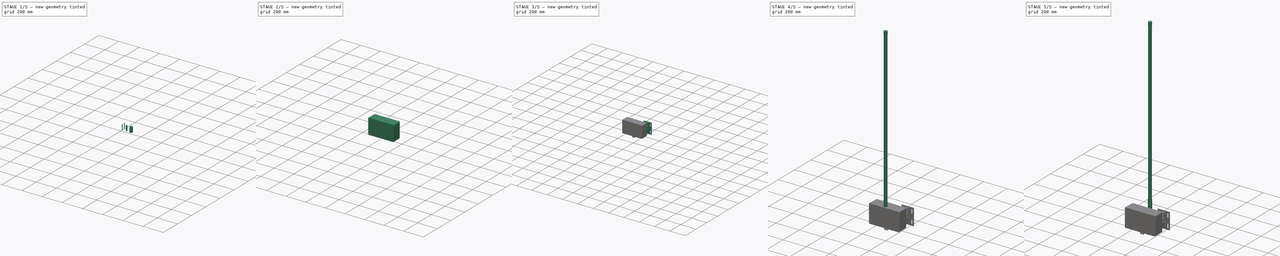
[diagram: build sequence overview — one tinted view per stage of 5, left to right]
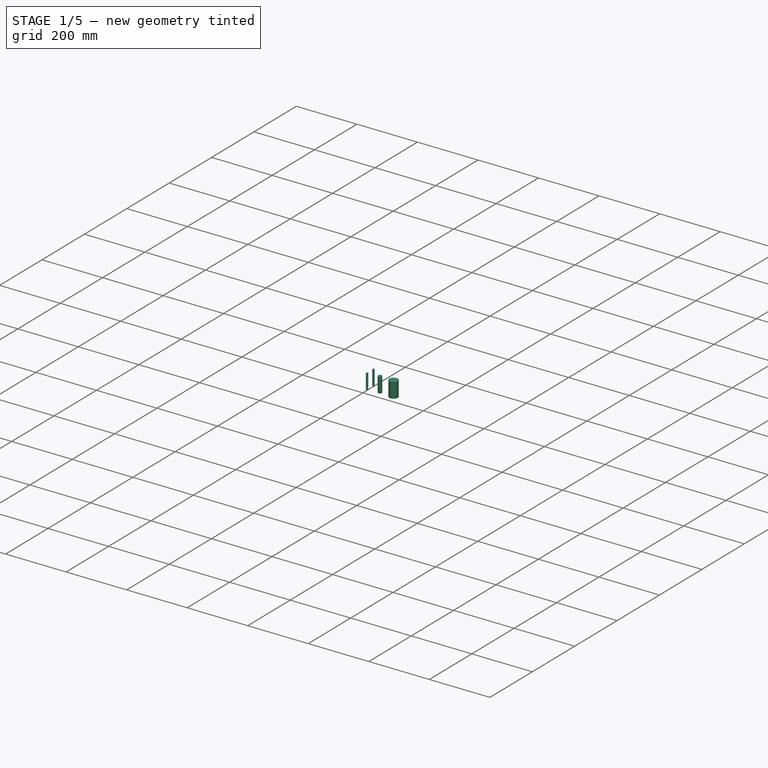
[diagram: stage 1 of 5 — iso view after this stage's code; geometry added in this stage tinted green]
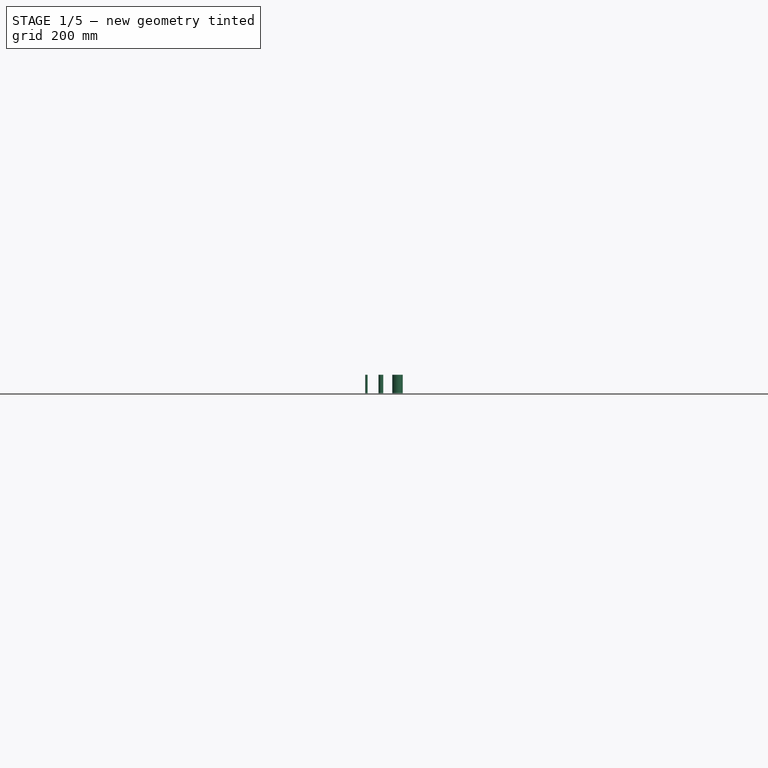
[diagram: stage 1 of 5 — front view after this stage's code; geometry added in this stage tinted green]
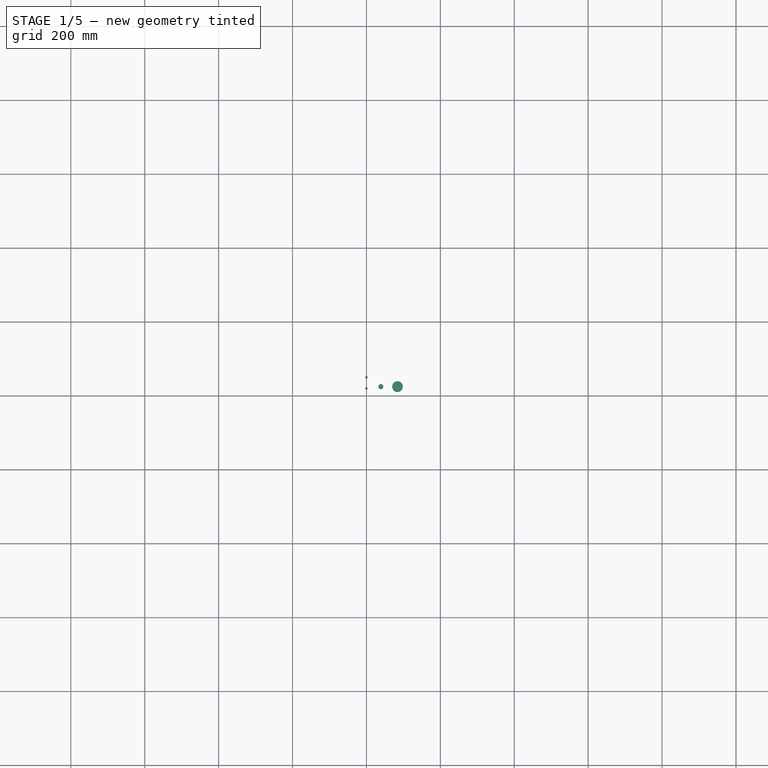
[diagram: stage 1 of 5 — top view after this stage's code; geometry added in this stage tinted green]
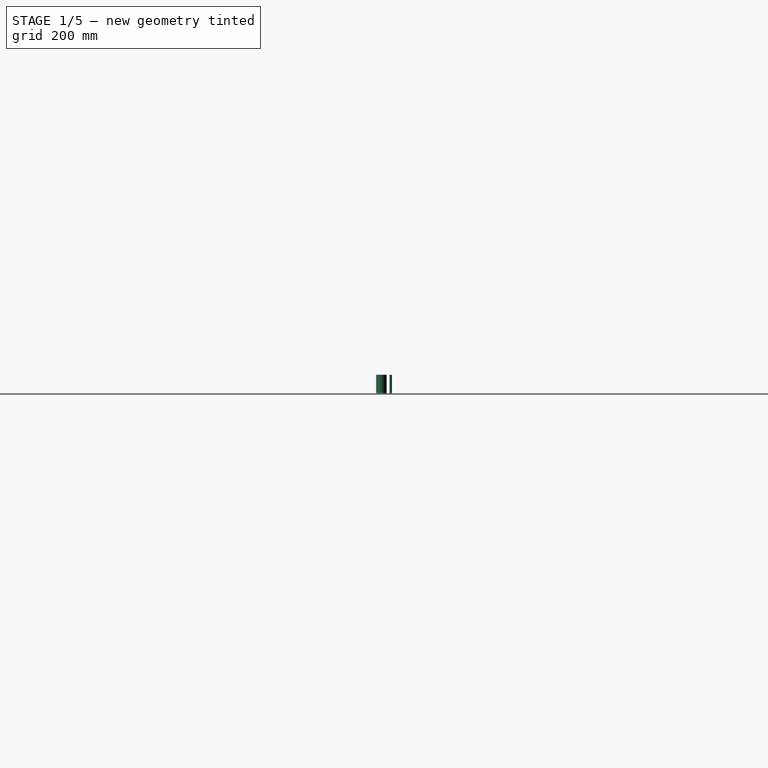
[diagram: stage 1 of 5 — right view after this stage's code; geometry added in this stage tinted green]
FCSTD DOCUMENT  (FreeCAD 0.20R29410 (Git))
Label: gateWayModuleTestPrint
License: All rights reserved
LicenseURL: http://en.wikipedia.org/wiki/All_rights_reserved
objects: Part::Feature×21, Part::Cylinder×10, Part::MultiFuse×6, App::Part×2, Part::Box×1, Sketcher::SketchObject×1, Part::Extrusion×1, Part::Cut×1
note: 41 computed .brp shape members not serialized (recipe doc carries the construction recipe); baked Part::Feature solids carry a one-line shape summary decoded from their .brp

FEATURE [Part::Cylinder] Cylinder035  label="pg7Cut"
  Angle = 360
  AttacherType = Attacher::AttachEngine3D
  FirstAngle = 0
  Height = 50
  Placement = pos=(39,25,-147) rot=(0,0,1;0rad)
  Radius = 6.4
  SecondAngle = 0
FEATURE [Part::Cylinder] Cylinder036  label="AnetnnaCut"
  Angle = 360
  AttacherType = Attacher::AttachEngine3D
  FirstAngle = 0
  Height = 50
  Placement = pos=(84,25,-147) rot=(0,0,1;0rad)
  Radius = 14.2
  SecondAngle = 0
FEATURE [Part::Feature] Part__Feature030  label="47065T139_T-Slotted Framing"
  Placement = pos=(0,20,-405) rot=(-0.57735,-0.57735,0.57735;2.0944rad)
  shape: bbox 11.25 x 25.4 x 17.44 mm, 56 faces, 2 solids (baked)
FEATURE [Part::Feature] Part__Feature031  label="47065T139_T-Slotted Framing001"
  Placement = pos=(0,50,-405) rot=(0.57735,0.57735,-0.57735;4.18879rad)
  shape: bbox 11.25 x 25.4 x 17.44 mm, 56 faces, 2 solids (baked)
FEATURE [Part::Cylinder] Cylinder037  label="m5Cut"
  Angle = 360
  AttacherType = Attacher::AttachEngine3D
  FirstAngle = 0
  Height = 50
  Placement = pos=(0,20,-147) rot=(0,0,1;0rad)
  Radius = 3.2
  SecondAngle = 0
FEATURE [Part::Cylinder] Cylinder038  label="m5Cut001"
  Angle = 360
  AttacherType = Attacher::AttachEngine3D
  FirstAngle = 0
  Height = 50
  Placement = pos=(0,50,-147) rot=(0,0,1;0rad)
  Radius = 3.2
  SecondAngle = 0
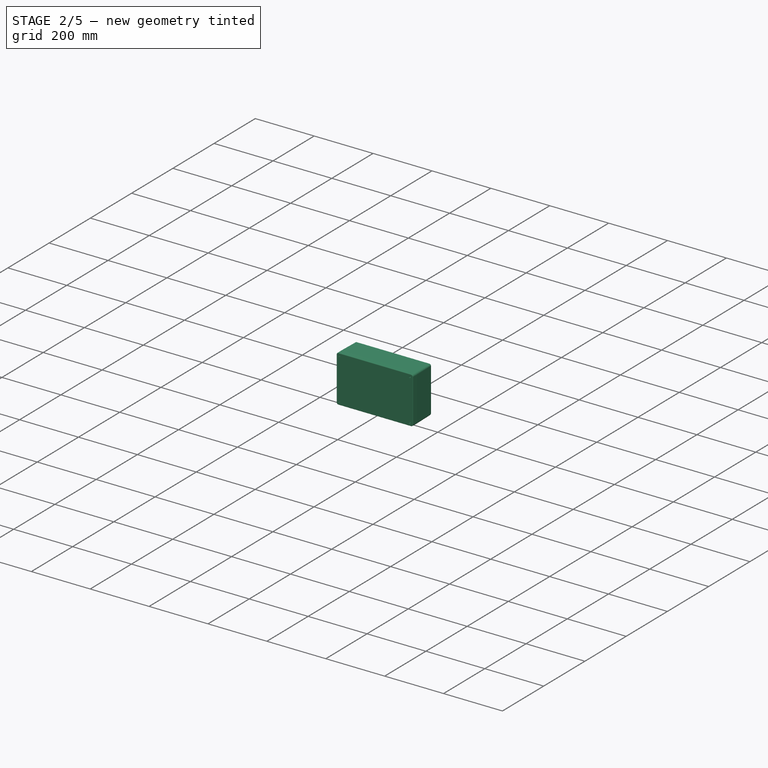
[diagram: stage 2 of 5 — iso view after this stage's code; geometry added in this stage tinted green]
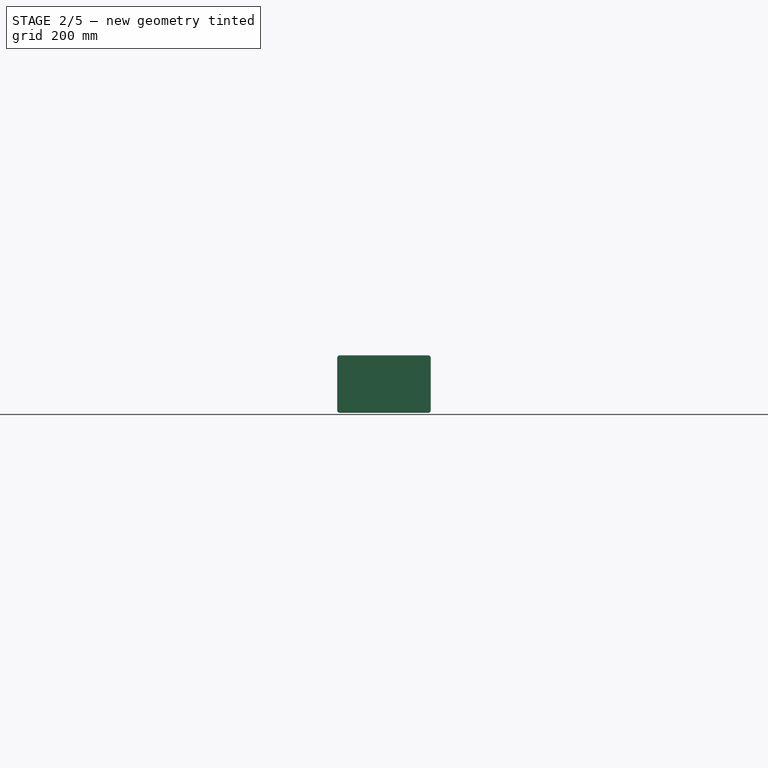
[diagram: stage 2 of 5 — front view after this stage's code; geometry added in this stage tinted green]
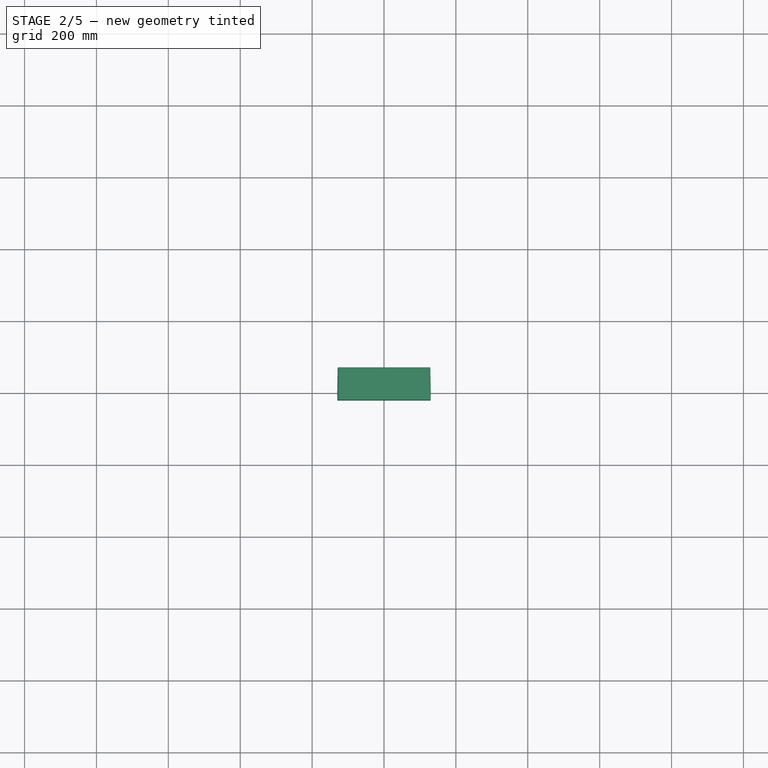
[diagram: stage 2 of 5 — top view after this stage's code; geometry added in this stage tinted green]
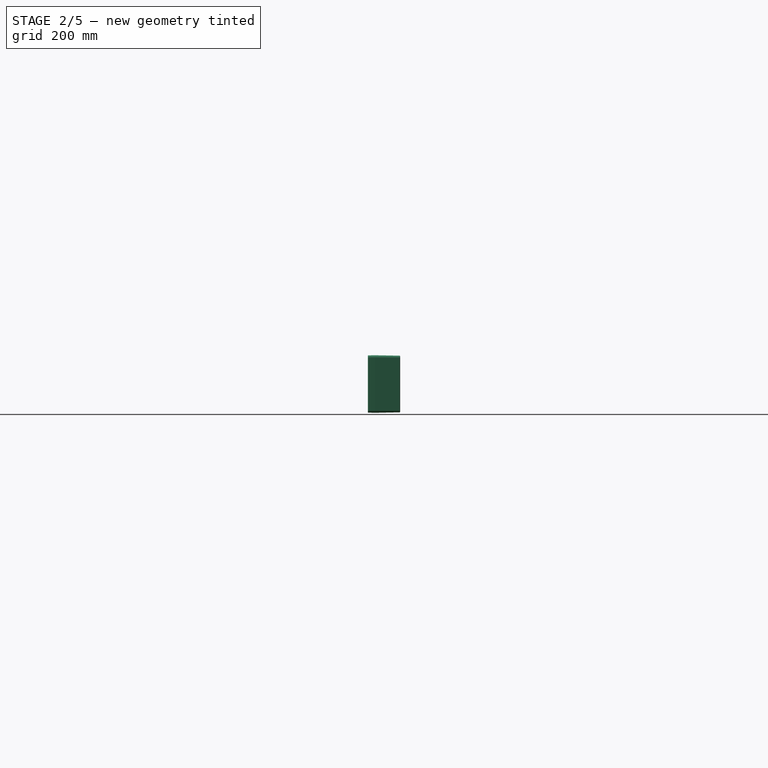
[diagram: stage 2 of 5 — right view after this stage's code; geometry added in this stage tinted green]
FEATURE [Part::Cylinder] Cylinder033  label="EthernetCut"
  Angle = 360
  AttacherType = Attacher::AttachEngine3D
  FirstAngle = 0
  Height = 50
  Placement = pos=(-85,25,-147) rot=(0,0,1;0rad)
  Radius = 15.1
  SecondAngle = 0
FEATURE [Part::Cylinder] Cylinder034  label="PowerCut"
  Angle = 360
  AttacherType = Attacher::AttachEngine3D
  FirstAngle = 0
  Height = 50
  Placement = pos=(-40,25,-147) rot=(0,0,1;0rad)
  Radius = 11
  SecondAngle = 0
FEATURE [Part::MultiFuse] Fusion012
  Shapes = -> [Cylinder038,Cylinder037,Cylinder036,Cylinder035,Cylinder033,Cylinder034]
FEATURE [Part::Cut] Cut
  Base = -> AN_23P_01
  Tool = -> Fusion012
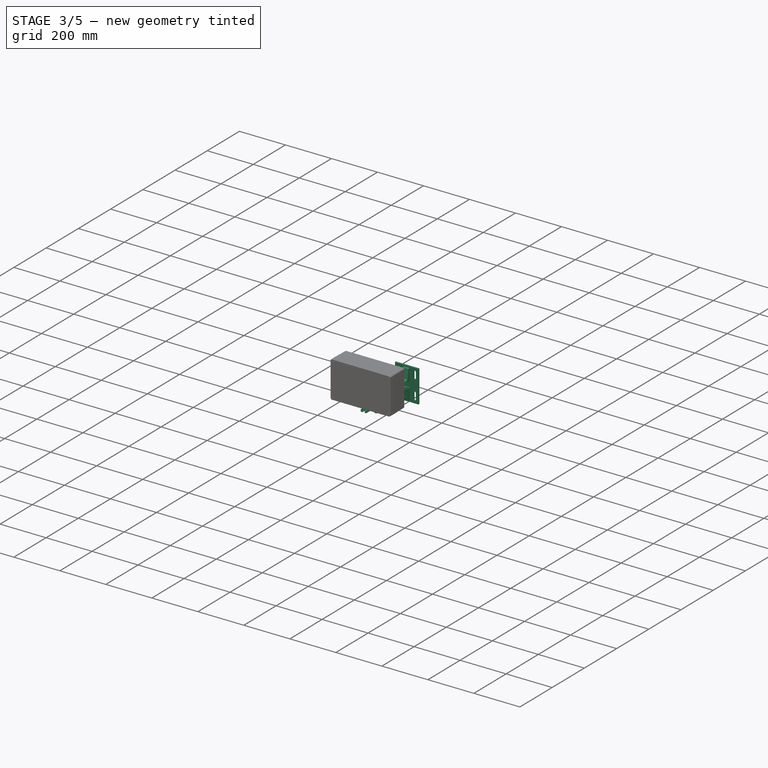
[diagram: stage 3 of 5 — iso view after this stage's code; geometry added in this stage tinted green]
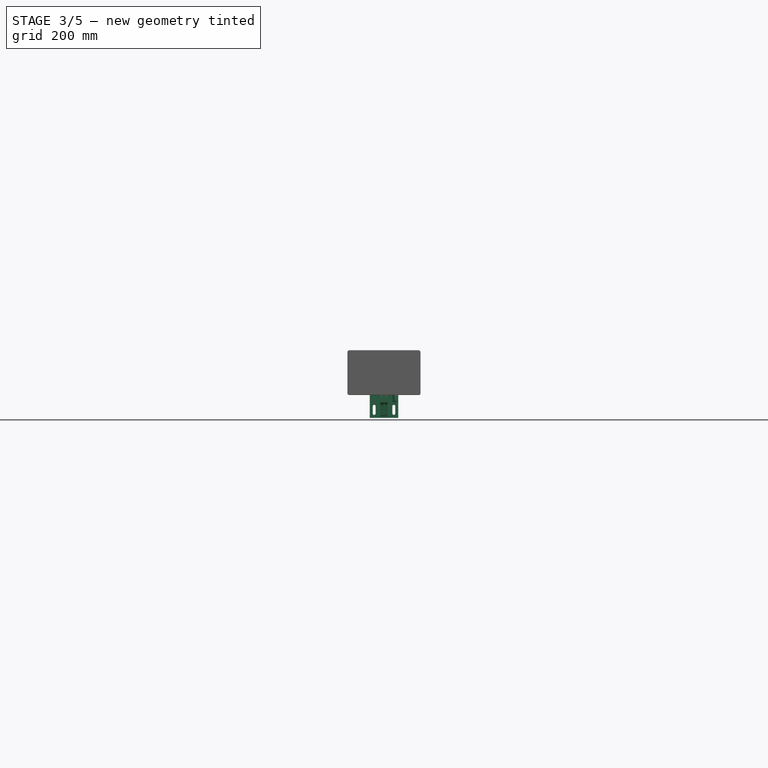
[diagram: stage 3 of 5 — front view after this stage's code; geometry added in this stage tinted green]
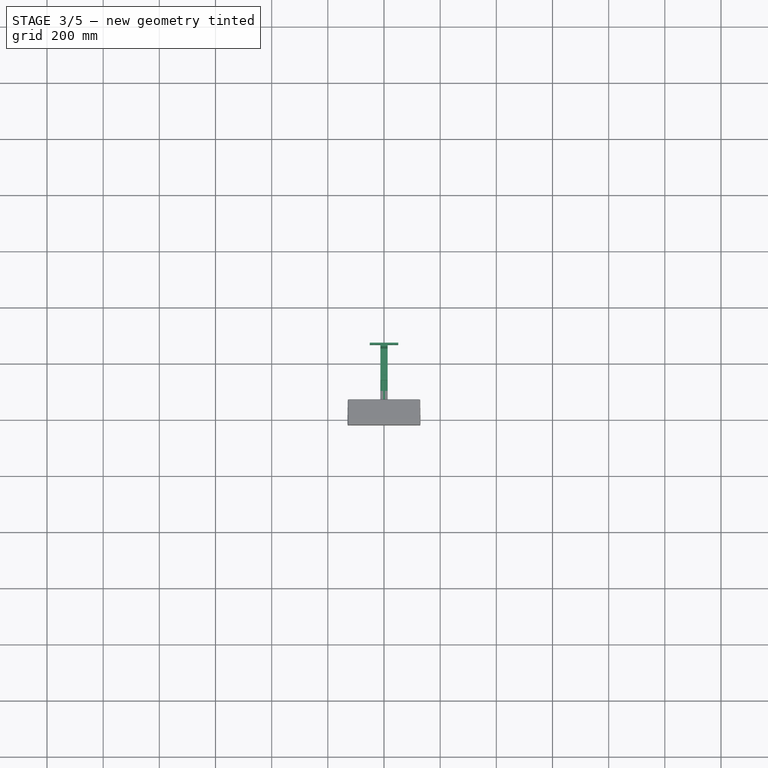
[diagram: stage 3 of 5 — top view after this stage's code; geometry added in this stage tinted green]
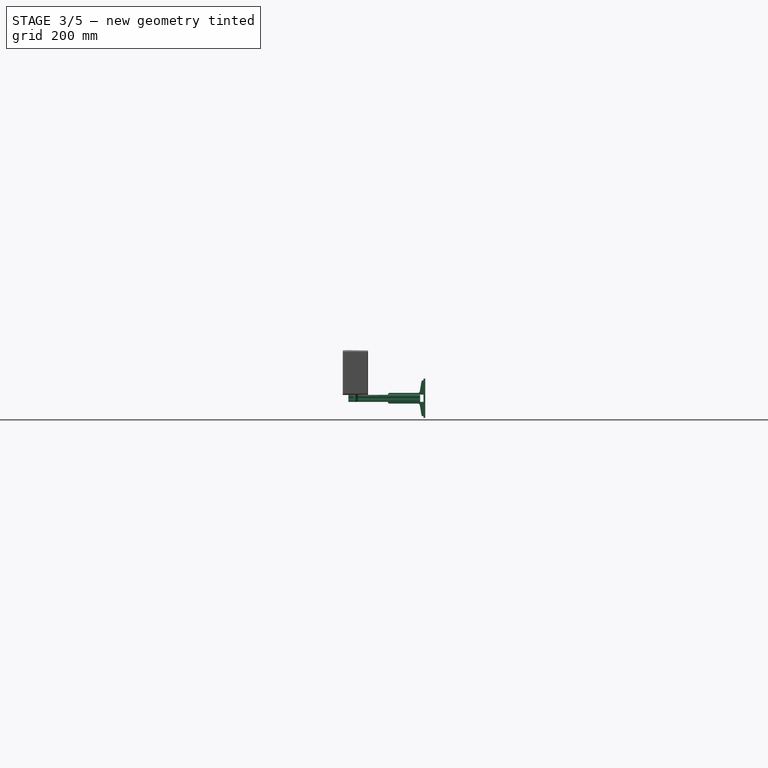
[diagram: stage 3 of 5 — right view after this stage's code; geometry added in this stage tinted green]
FEATURE [Sketcher::SketchObject] Sketch
  FullyConstrained = true
  sketch-geometry (7):
    g0: LineSegment StartX=12.25 StartY=-7.07254 StartZ=0 EndX=12.25 EndY=7.07254 EndZ=0
    g1: LineSegment StartX=12.25 StartY=7.07254 StartZ=0 EndX=0 EndY=14.1451 EndZ=0
    g2: LineSegment StartX=0 StartY=14.1451 StartZ=0 EndX=-12.25 EndY=7.07254 EndZ=0
    g3: LineSegment StartX=-12.25 StartY=7.07254 StartZ=0 EndX=-12.25 EndY=-7.07254 EndZ=0
    g4: LineSegment StartX=-12.25 StartY=-7.07254 StartZ=0 EndX=0 EndY=-14.1451 EndZ=0
    g5: LineSegment StartX=0 StartY=-14.1451 StartZ=0 EndX=12.25 EndY=-7.07254 EndZ=0
    g6: Circle CenterX=0 CenterY=0 CenterZ=0 NormalX=0 NormalY=0 NormalZ=1 AngleXU=0 Radius=14.1451
  constraints (17):
    c: Coincident(g0,g1)
    c: Coincident(g1,g2)
    c: Coincident(g2,g3)
    c: Coincident(g3,g4)
    c: Coincident(g4,g5)
    c: Coincident(g5,g0)
    c: Equal(g0, g1-g5) x5
    c: PointOnObject(g0,g6)
    c: PointOnObject(g1,g6)
    c: PointOnObject(g2,g6)
    c: PointOnObject(g3,g6)
    c: PointOnObject(g4,g6)
    c: PointOnObject(g5,g6)
    c: DistanceY(g6) = 0
    c: DistanceX(g6) = 0
    c: DistanceX(g1) = 0
    c: DistanceX(g2,g0) = 24.5
FEATURE [Part::Extrusion] Extrude
  Base = -> Sketch
  Dir = (0,0,1)
  DirMode = 2
  FaceMakerClass = Part::FaceMakerBullseye
  LengthFwd = 4.83
  LengthRev = 0
  Placement = pos=(0,0,12.19) rot=(0,0,1;0rad)
  Solid = true
  Symmetric = false
FEATURE [Part::Feature] Part__Feature021  label="LoRaAntennaGland"
  Placement = pos=(84,25,-120) rot=(-1,0,0;1.5708rad)
  shape: bbox 36.99 x 36.69 x 48.04 mm, 518 faces, 0 solids (baked)
FEATURE [Part::Feature] Part__Feature022  label="3136N138_T-Slotted Framing"
  Placement = pos=(0,200.3,0) rot=(0,0,1;0rad)
  shape: bbox 101.6 x 133.4 x 139.7 mm, 136 faces (baked)
FEATURE [Part::Feature] Part__Feature023  label="47065T801_T-Slotted Framing"
  Placement = pos=(0,288.5,0) rot=(-1,0,0;1.5708rad)
  shape: bbox 25.4 x 152.4 x 25.4 mm, 108 faces (baked)
FEATURE [Part::Feature] Part__Feature024  label="47065T801_T-Slotted Framing001"
  Placement = pos=(0,391.5,0) rot=(-1,0,0;1.5708rad)
  shape: bbox 25.4 x 152.4 x 25.4 mm, 108 faces (baked)
FEATURE [Part::MultiFuse] Fusion008  label="framingSupport"
  Placement = pos=(0,468,-141.41) rot=(0,0,1;3.14159rad)
  Shapes = -> [Part__Feature024,Part__Feature022,Part__Feature023]
FEATURE [Part::Feature] Part__Feature025  label="Cable Gland PG7-PG19 Body_PG008"
  shape: bbox 17.67 x 27.9 x 16 mm, 147 faces (baked)
FEATURE [Part::Feature] Part__Feature026  label="Cable Gland PG7-PG19 Washer_PG008"
  Placement = pos=(0,-2.8,0) rot=(0,0,1;0rad)
  shape: bbox 16.6 x 1.2 x 16.6 mm, 6 faces (baked)
FEATURE [Part::Feature] Part__Feature027  label="Cable Gland PG7-PG19 Lock Nut_PG008"
  Placement = pos=(0,-5.6,0) rot=(0,0,1;3.14159rad)
  shape: bbox 19.6 x 5.77 x 19.6 mm, 32 faces (baked)
FEATURE [Part::Feature] Part__Feature028  label="Cable Gland PG7-PG19 Sleeve_PG008"
  Placement = pos=(0,13.65,0) rot=(0,0,1;0rad)
  shape: bbox 8.4 x 6.7 x 8.4 mm, 6 faces (baked)
FEATURE [Part::Feature] Part__Feature029  label="Cable Gland PG7-PG19 Gland Nut_PG008"
  Placement = pos=(0,10.95,0) rot=(0,-1,0;1.94172rad)
  shape: bbox 16.87 x 14 x 16.87 mm, 64 faces (baked)
FEATURE [Part::MultiFuse] Fusion011  label="pg7-Copper"
  Placement = pos=(39,25,-134) rot=(-1,0,0;1.5708rad)
  Shapes = -> [Part__Feature025,Part__Feature026,Part__Feature027,Part__Feature028,Part__Feature029]
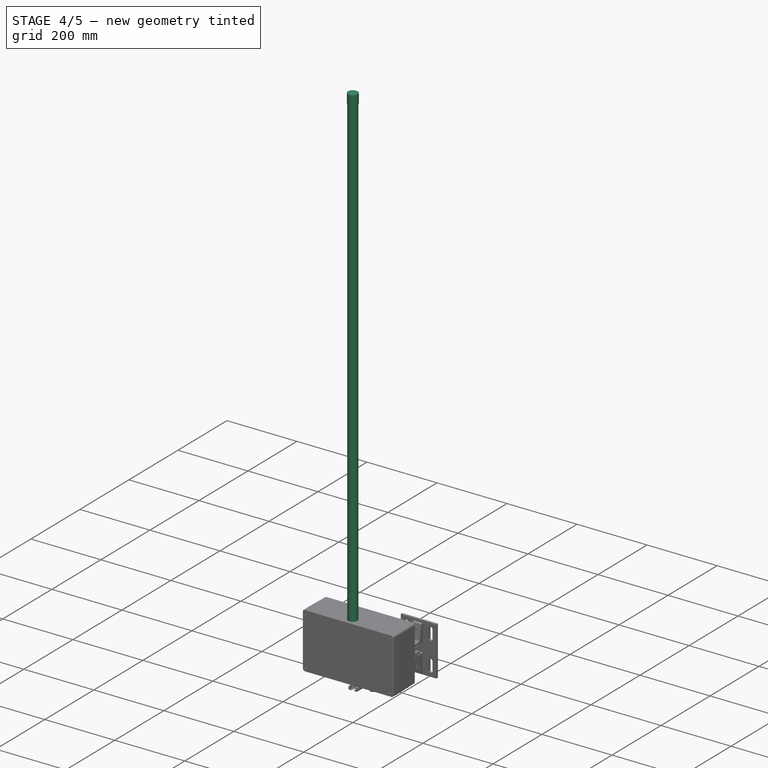
[diagram: stage 4 of 5 — iso view after this stage's code; geometry added in this stage tinted green]
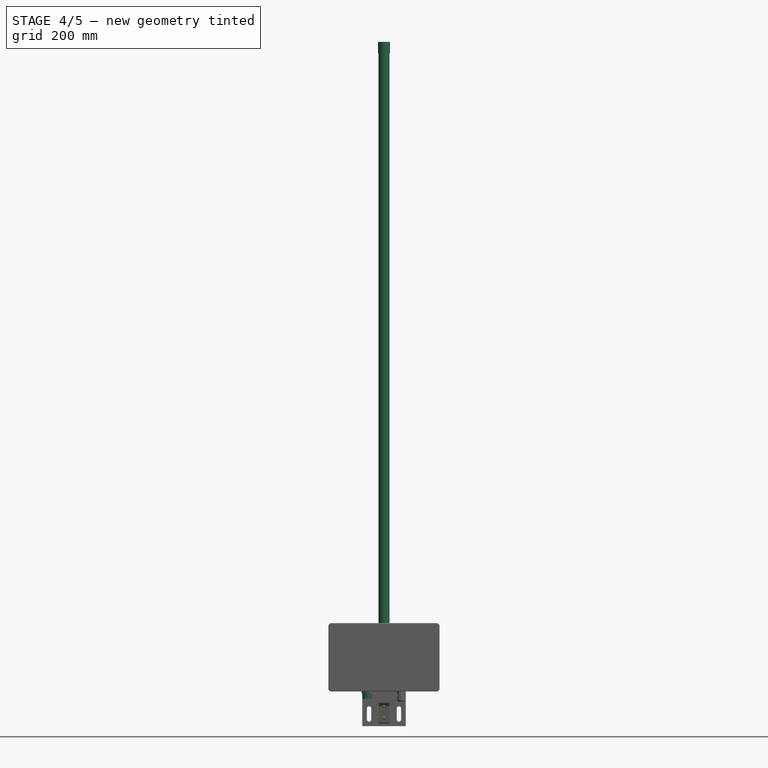
[diagram: stage 4 of 5 — front view after this stage's code; geometry added in this stage tinted green]
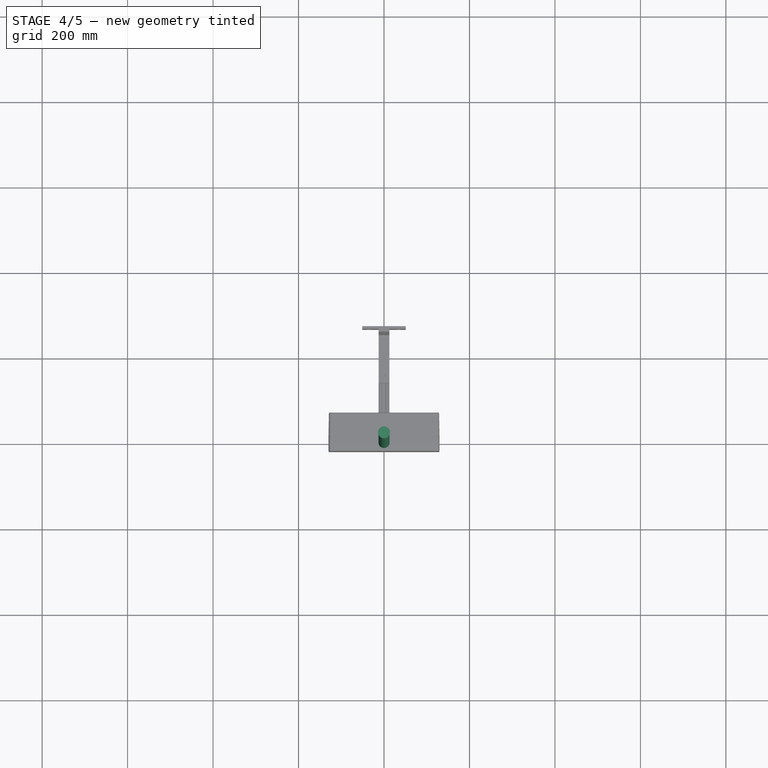
[diagram: stage 4 of 5 — top view after this stage's code; geometry added in this stage tinted green]
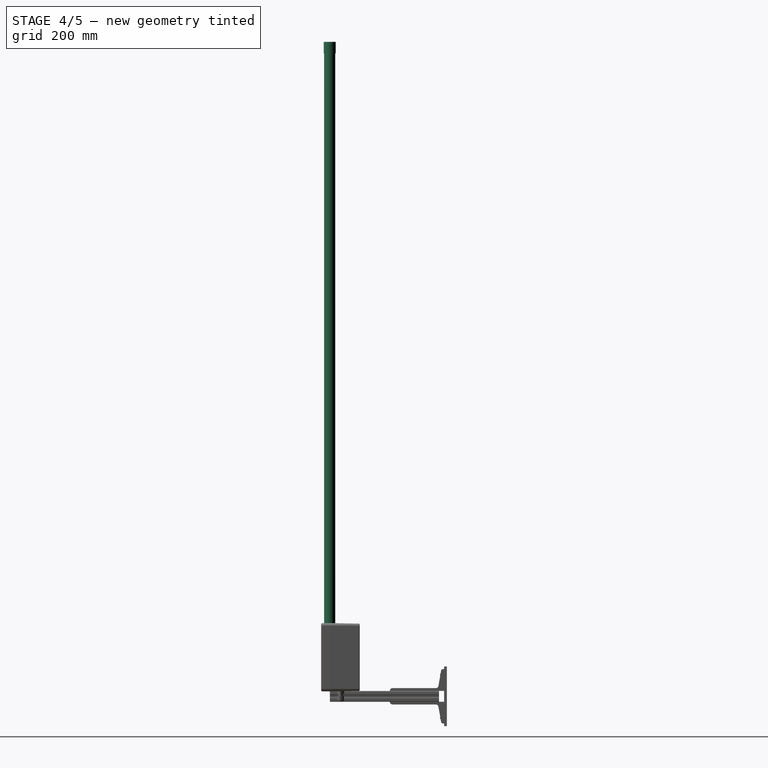
[diagram: stage 4 of 5 — right view after this stage's code; geometry added in this stage tinted green]
FEATURE [Part::Cylinder] Cylinder030  label="loraAntenna"
  Angle = 360
  AttacherType = Attacher::AttachEngine3D
  FirstAngle = 0
  Height = 1390
  Radius = 13
  SecondAngle = 0
FEATURE [Part::Cylinder] Cylinder032  label="loraAntenna002"
  Angle = 360
  AttacherType = Attacher::AttachEngine3D
  FirstAngle = 0
  Height = 27
  Placement = pos=(0,0,1363) rot=(0,0,1;0rad)
  Radius = 14
  SecondAngle = 0
FEATURE [Part::Feature] Part__Feature008  label="CUI_VGS-25W-5"
  Placement = pos=(-42,23,-27) rot=(1,0,0;3.14159rad)
  shape: bbox 55.36 x 25.53 x 90.37 mm, 2734 faces, 26 solids (baked)
FEATURE [Part::Feature] Part__Feature009  label="DCC-RJ6ST-310"
  Placement = pos=(-85,25,-123) rot=(0,0,1;0rad)
  shape: bbox 40.36 x 68.07 x 51.72 mm, 441 faces (baked)
FEATURE [Part::Feature] Part__Feature010  label="DCP-RJ6ST-F"
  Placement = pos=(-85,25,-123.5) rot=(0,1,0;3.14159rad)
  shape: bbox 40.26 x 40.33 x 38.85 mm, 485 faces, 2 solids (baked)
FEATURE [Part::Cylinder] Cylinder  label="plugIn"
  Angle = 360
  AttacherType = Attacher::AttachEngine3D
  FirstAngle = 0
  Height = 28.19
  Radius = 11
  SecondAngle = 0
FEATURE [Part::MultiFuse] Fusion  label="powerPlug"
  Placement = pos=(-40,25,-147) rot=(0,0,1;0rad)
  Shapes = -> [Cylinder,Extrude]
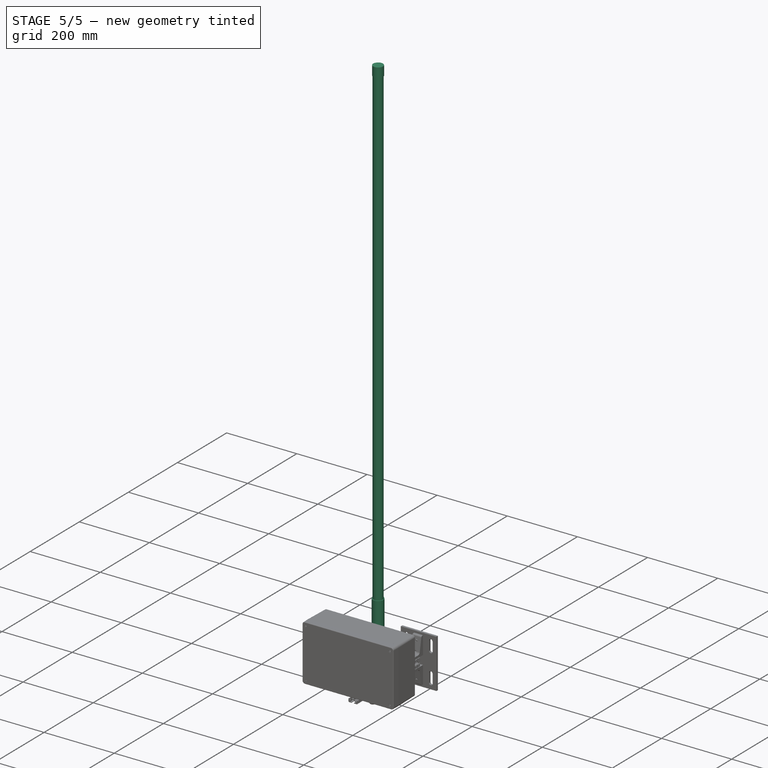
[diagram: stage 5 of 5 — iso view after this stage's code; geometry added in this stage tinted green]
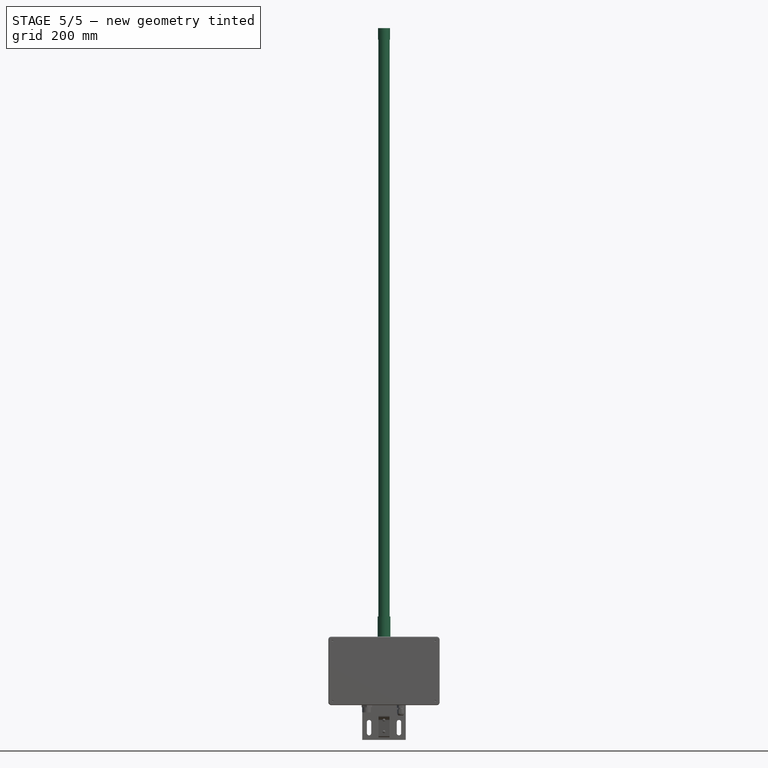
[diagram: stage 5 of 5 — front view after this stage's code; geometry added in this stage tinted green]
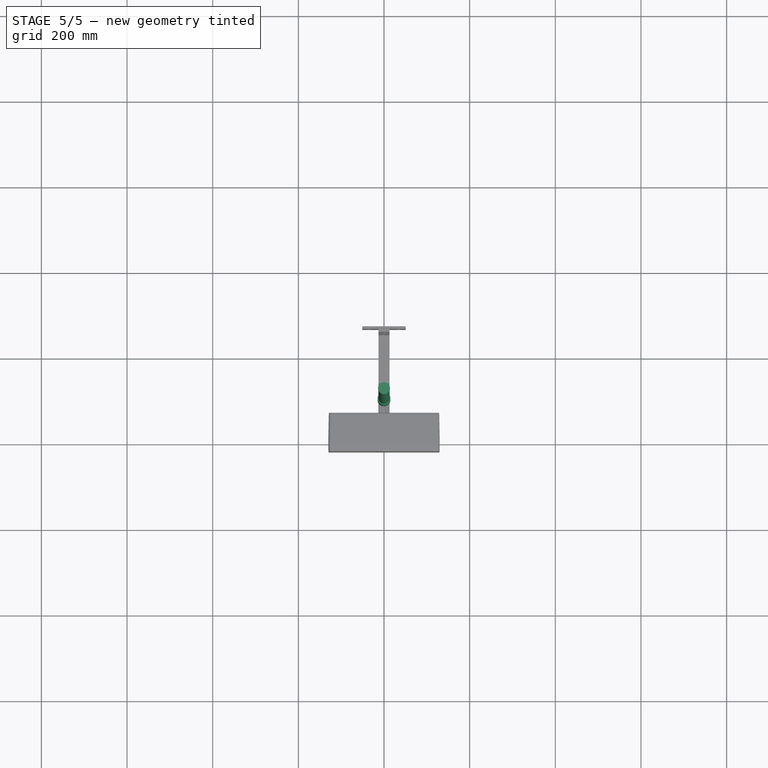
[diagram: stage 5 of 5 — top view after this stage's code; geometry added in this stage tinted green]
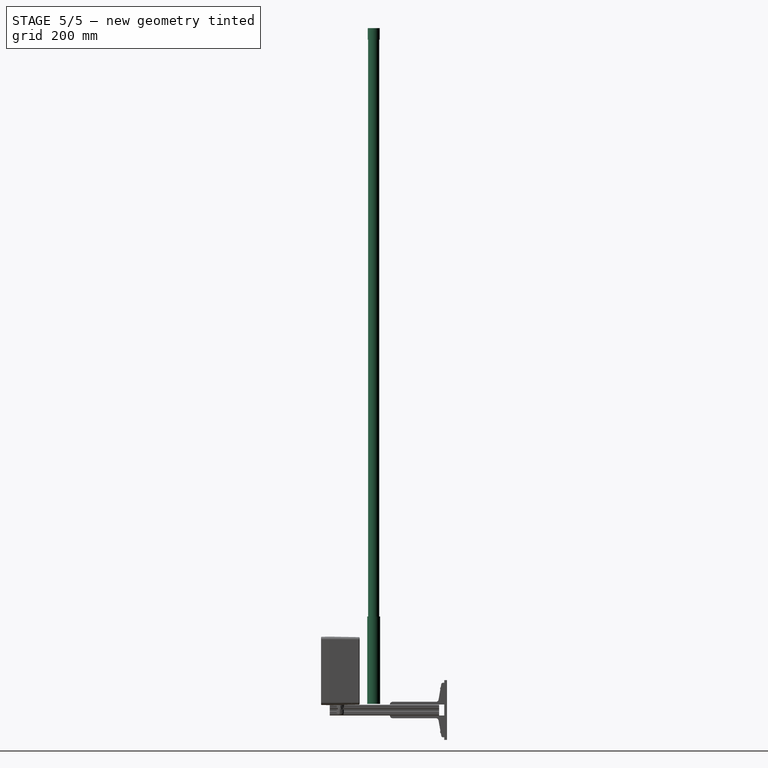
[diagram: stage 5 of 5 — right view after this stage's code; geometry added in this stage tinted green]
FEATURE [Part::Feature] Part__Feature  label="AN-23B_AN-23BP-01"
  shape: bbox 160 x 71.5 x 260 mm, 302 faces (baked)
FEATURE [Part::Feature] Part__Feature001  label="AN-23C_AN-23C-01"
  shape: bbox 160.5 x 20 x 260.5 mm, 243 faces (baked)
FEATURE [Part::Feature] Part__Feature002  label="cross recessed countersunk head screw_jis_JIS 1111 Cross recessed countersunk head screw - M4 x 32 - Z --24CSST"
  Placement = pos=(245.578,1.4369,155.7) rot=(0.642635,-0.642635,0.417181;3.93205rad)
  shape: bbox 8.4 x 32 x 8.4 mm, 32 faces (baked)
FEATURE [Part::Feature] Part__Feature003  label="cross recessed countersunk head screw_jis_JIS 1111 Cross recessed countersunk head screw - M4 x 32 - Z --24CSST001"
  Placement = pos=(245.578,1.4369,15.6996) rot=(0.610522,-0.610522,0.504506;4.07608rad)
  shape: bbox 8.4 x 32 x 8.4 mm, 32 faces (baked)
FEATURE [Part::Feature] Part__Feature004  label="cross recessed countersunk head screw_jis_JIS 1111 Cross recessed countersunk head screw - M4 x 32 - Z --24CSST002"
  Placement = pos=(5.5776,1.4369,15.6996) rot=(0.641113,-0.641113,0.421839;3.93997rad)
  shape: bbox 8.4 x 32 x 8.4 mm, 32 faces (baked)
FEATURE [Part::Feature] Part__Feature005  label="cross recessed countersunk head screw_jis_JIS 1111 Cross recessed countersunk head screw - M4 x 32 - Z --24CSST003"
  Placement = pos=(5.5776,1.4369,155.7) rot=(0.666667,-0.666667,0.333333;3.78509rad)
  shape: bbox 8.4 x 32 x 8.4 mm, 32 faces (baked)
FEATURE [App::Part] SCREWS_036_4  label="SCREWS-036-4"
  Group = -> [Part__Feature002,Part__Feature003,Part__Feature004,Part__Feature005]
  Origin = -> Origin
  Placement = pos=(85.6996,18.1356,-125.578) rot=(0,-1,0;1.5708rad)
FEATURE [Part::Feature] Part__Feature006  label="GASKET-123-01"
  Placement = pos=(0,1.04,0) rot=(0,0,1;0rad)
  shape: bbox 157.7 x 1.5 x 257.7 mm, 98 faces (baked)
FEATURE [App::Part] AN_23P_01  label="AN-23P-01"
  Group = -> [Part__Feature,Part__Feature001,SCREWS_036_4,Part__Feature006]
  Origin = -> Origin001
  Placement = pos=(0,0,-50) rot=(0.707107,0,-0.707107;3.14159rad)
FEATURE [Part::Box] Box  label="Gateway"
  AttacherType = Attacher::AttachEngine3D
  Height = 120
  Length = 120
  Placement = pos=(-66,26,-100) rot=(0,0,1;0rad)
  Width = 30
FEATURE [Part::Cylinder] Cylinder031  label="loraAntenna001"
  Angle = 360
  AttacherType = Attacher::AttachEngine3D
  FirstAngle = 0
  Height = 204
  Radius = 15
  SecondAngle = 0
FEATURE [Part::MultiFuse] Fusion006  label="loraAntenna003"
  Placement = pos=(0,0,188) rot=(0,0,1;0rad)
  Shapes = -> [Cylinder030,Cylinder032]
FEATURE [Part::MultiFuse] Fusion007  label="loraAntenna004"
  Placement = pos=(0,103,-127) rot=(0,0,1;0rad)
  Shapes = -> [Fusion006,Cylinder031]
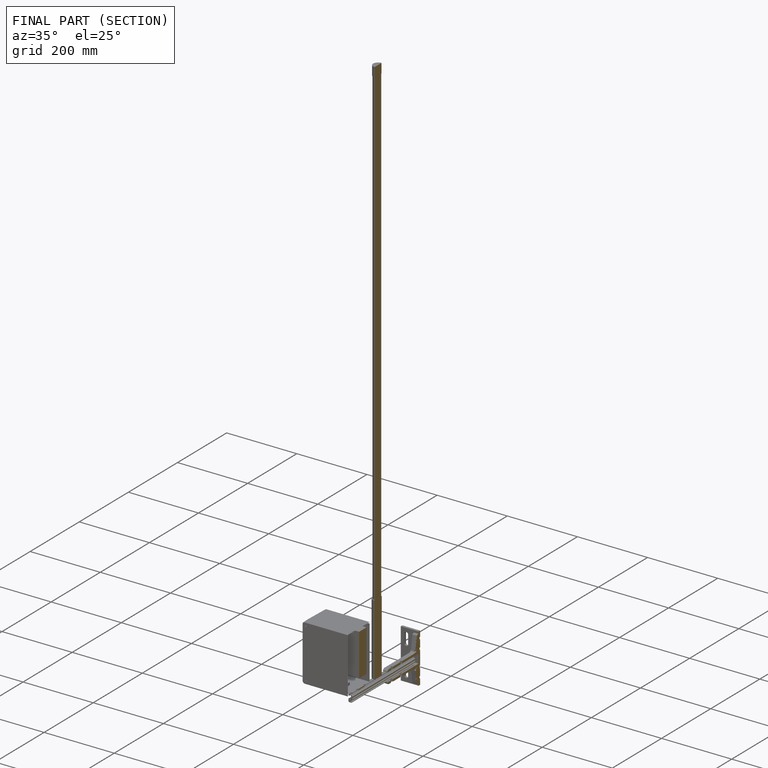
[diagram: finished part — half-section view (interior)]
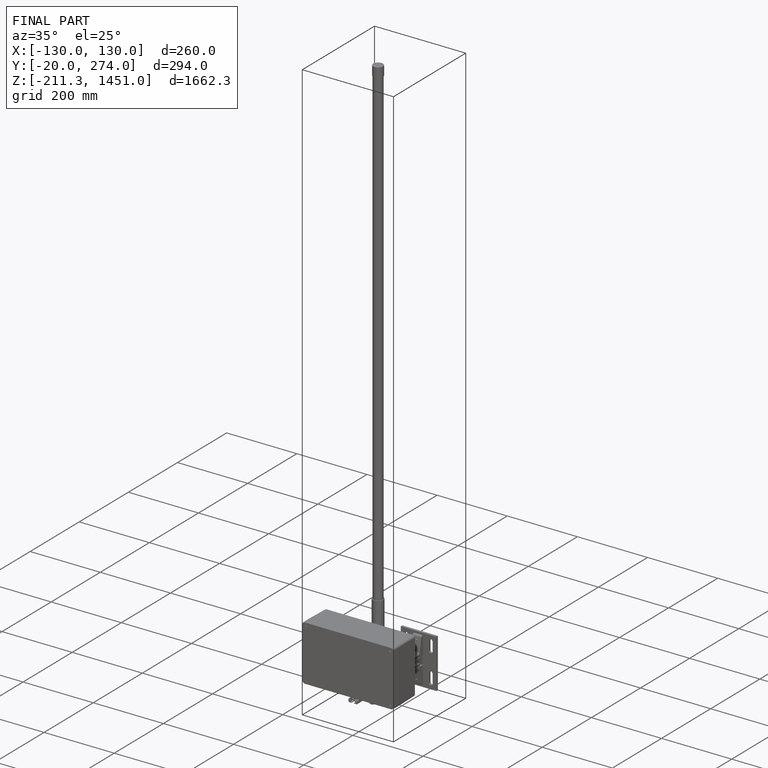
[diagram: finished part — iso view with bounding-box wireframe]
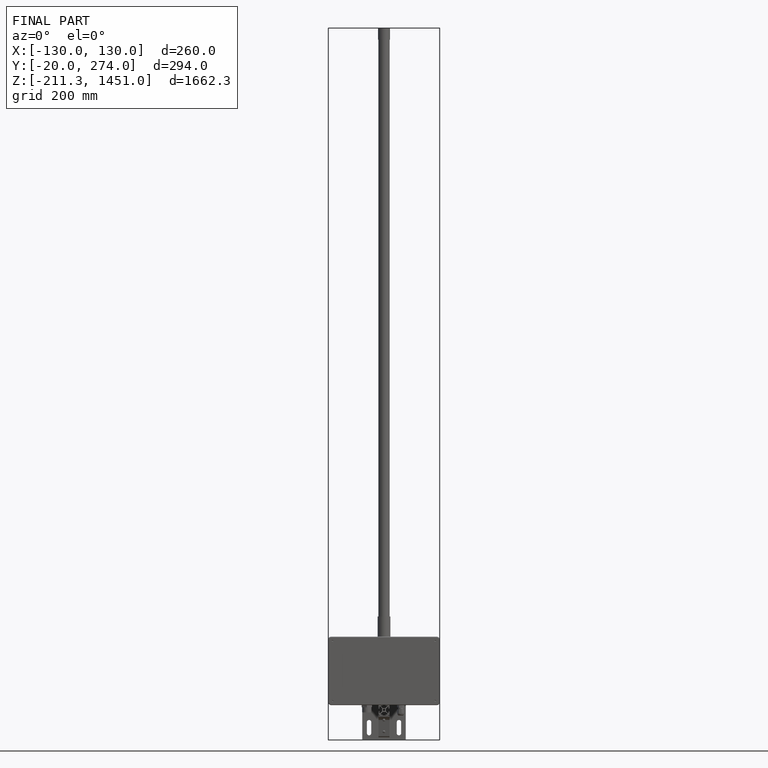
[diagram: finished part — front view with bounding-box wireframe]
